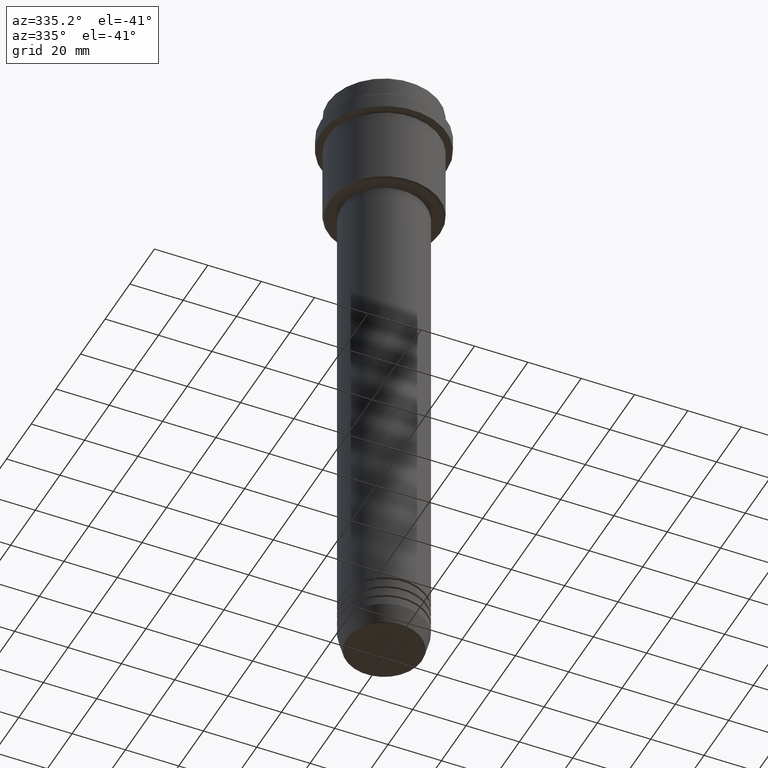
[diagram: clean part render]
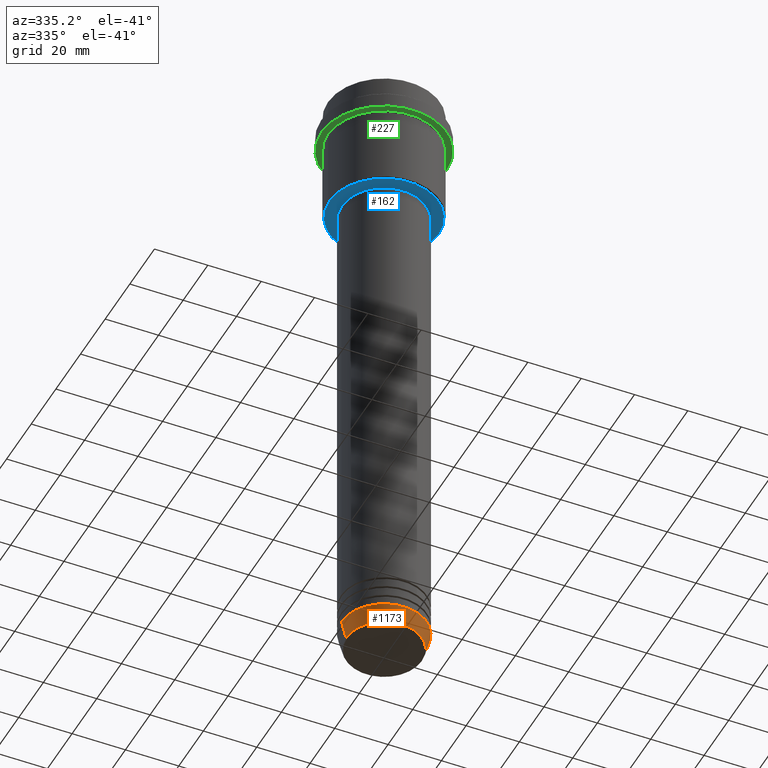
[diagram: same view with three faces highlighted in distinct colors, each labeled with its STEP entity id]
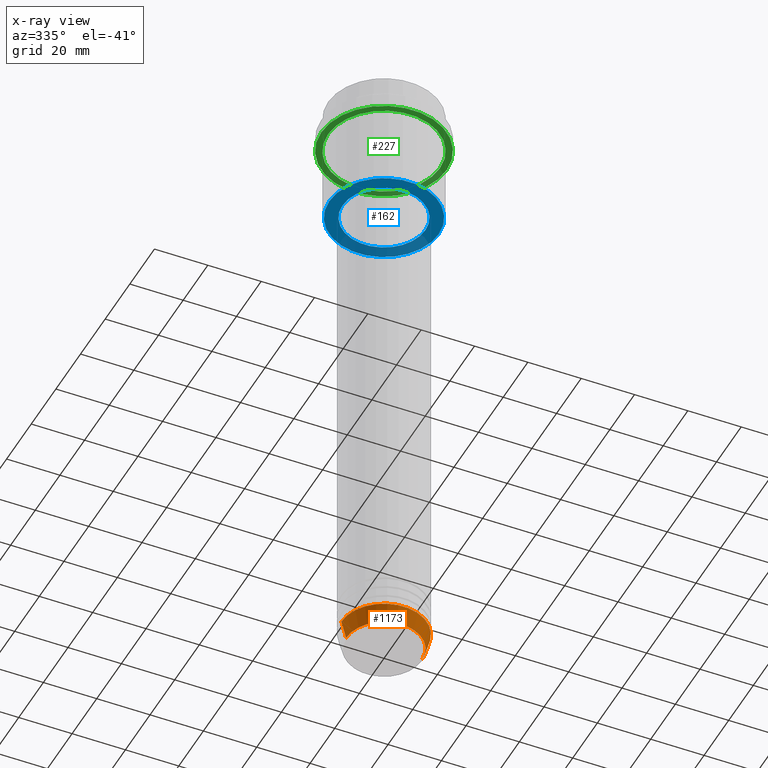
[diagram: x-ray of the same camera — body ghosted, the three highlighted faces saturated]
A machine part, auxiliary view with three faces highlighted in distinct colors.
The next image is the same camera in x-ray (body ghosted, the three faces saturated) — at least one of them is partly hidden behind the body in this view.
Their STEP definitions:

[orange] entity #1173 — the highlighted conical surface has half-angle 15 deg.
#13 = EDGE_CURVE ( 'NONE', #1147, #641, #209, .T. ) ;
#28 = CARTESIAN_POINT ( 'NONE',  ( -16.00000000000000000, 1.959434878635765131E-15, -233.0000000000000284 ) ) ;
#184 = EDGE_CURVE ( 'NONE', #1180, #1115, #526, .T. ) ;
#209 = CIRCLE ( 'NONE', #765, 14.22365507213720548 ) ;
#218 = CARTESIAN_POINT ( 'NONE',  ( 0.000000000000000000, 0.000000000000000000, -233.0000000000000284 ) ) ;
#239 = DIRECTION ( 'NONE',  ( 0.2588190451025205174, 0.000000000000000000, 0.9659258262890684232 ) ) ;
#278 = CONICAL_SURFACE ( 'NONE', #1350, 16.00000000000000000, 0.2617993877991491303 ) ;
#373 = CARTESIAN_POINT ( 'NONE',  ( 0.000000000000000000, 0.000000000000000000, -239.6294095225512990 ) ) ;
#378 = EDGE_CURVE ( 'NONE', #641, #1115, #675, .T. ) ;
#413 = VECTOR ( 'NONE', #1103, 1000.000000000000114 ) ;
#421 = DIRECTION ( 'NONE',  ( -0.000000000000000000, -0.000000000000000000, 1.000000000000000000 ) ) ;
#475 = AXIS2_PLACEMENT_3D ( 'NONE', #897, #1331, #803 ) ;
#494 = CARTESIAN_POINT ( 'NONE',  ( 14.22365507213720548, 0.000000000000000000, -239.6294095225512990 ) ) ;
#526 = CIRCLE ( 'NONE', #475, 16.00000000000000000 ) ;
#641 = VERTEX_POINT ( 'NONE', #494 ) ;
#675 = LINE ( 'NONE', #1192, #1299 ) ;
#765 = AXIS2_PLACEMENT_3D ( 'NONE', #373, #421, #1042 ) ;
#797 = LINE ( 'NONE', #1129, #413 ) ;
#803 = DIRECTION ( 'NONE',  ( 1.000000000000000000, 0.000000000000000000, 0.000000000000000000 ) ) ;
#838 = ORIENTED_EDGE ( 'NONE', *, *, #13, .T. ) ;
#868 = EDGE_CURVE ( 'NONE', #1147, #1180, #797, .T. ) ;
#897 = CARTESIAN_POINT ( 'NONE',  ( 0.000000000000000000, 0.000000000000000000, -233.0000000000000284 ) ) ;
#956 = CARTESIAN_POINT ( 'NONE',  ( 16.00000000000000000, 0.000000000000000000, -233.0000000000000284 ) ) ;
#975 = FACE_OUTER_BOUND ( 'NONE', #1127, .T. ) ;
#1042 = DIRECTION ( 'NONE',  ( 1.000000000000000000, 0.000000000000000000, 0.000000000000000000 ) ) ;
#1048 = ORIENTED_EDGE ( 'NONE', *, *, #868, .F. ) ;
#1061 = CARTESIAN_POINT ( 'NONE',  ( -14.22365507213720548, 1.850665122131324520E-15, -239.6294095225512990 ) ) ;
#1077 = DIRECTION ( 'NONE',  ( -0.000000000000000000, -0.000000000000000000, 1.000000000000000000 ) ) ;
#1103 = DIRECTION ( 'NONE',  ( -0.2588190451025205174, 3.169619151431761243E-17, 0.9659258262890684232 ) ) ;
#1109 = ORIENTED_EDGE ( 'NONE', *, *, #378, .T. ) ;
#1115 = VERTEX_POINT ( 'NONE', #956 ) ;
#1127 = EDGE_LOOP ( 'NONE', ( #1048, #838, #1109, #1183 ) ) ;
#1129 = CARTESIAN_POINT ( 'NONE',  ( -16.00000000000000000, 1.959434878635765131E-15, -233.0000000000000284 ) ) ;
#1147 = VERTEX_POINT ( 'NONE', #1061 ) ;
#1173 = ADVANCED_FACE ( 'NONE', ( #975 ), #278, .T. ) ;
#1180 = VERTEX_POINT ( 'NONE', #28 ) ;
#1183 = ORIENTED_EDGE ( 'NONE', *, *, #184, .F. ) ;
#1192 = CARTESIAN_POINT ( 'NONE',  ( 16.00000000000000000, 0.000000000000000000, -233.0000000000000284 ) ) ;
#1194 = DIRECTION ( 'NONE',  ( 1.000000000000000000, 0.000000000000000000, 0.000000000000000000 ) ) ;
#1299 = VECTOR ( 'NONE', #239, 1000.000000000000114 ) ;
#1331 = DIRECTION ( 'NONE',  ( -0.000000000000000000, -0.000000000000000000, 1.000000000000000000 ) ) ;
#1350 = AXIS2_PLACEMENT_3D ( 'NONE', #218, #1077, #1194 ) ;

[blue] entity #162 — the highlighted planar face has unit normal (0, 0, -1).
#3 = EDGE_CURVE ( 'NONE', #1347, #506, #452, .T. ) ;
#31 = EDGE_CURVE ( 'NONE', #874, #1139, #988, .T. ) ;
#32 = DIRECTION ( 'NONE',  ( 0.000000000000000000, 0.000000000000000000, -1.000000000000000000 ) ) ;
#52 = EDGE_CURVE ( 'NONE', #506, #1347, #391, .T. ) ;
#65 = FACE_BOUND ( 'NONE', #622, .T. ) ;
#83 = CARTESIAN_POINT ( 'NONE',  ( 0.000000000000000000, 21.00000000000000000, -45.00000000000002132 ) ) ;
#128 = PLANE ( 'NONE',  #787 ) ;
#162 = ADVANCED_FACE ( 'NONE', ( #938, #65 ), #128, .T. ) ;
#242 = DIRECTION ( 'NONE',  ( 0.000000000000000000, 0.000000000000000000, -1.000000000000000000 ) ) ;
#274 = AXIS2_PLACEMENT_3D ( 'NONE', #1279, #729, #425 ) ;
#301 = CIRCLE ( 'NONE', #637, 15.50000000000000000 ) ;
#304 = ORIENTED_EDGE ( 'NONE', *, *, #31, .T. ) ;
#310 = CARTESIAN_POINT ( 'NONE',  ( 15.50000000000000000, 0.000000000000000000, -45.00000000000002132 ) ) ;
#391 = CIRCLE ( 'NONE', #1220, 20.50000000000004619 ) ;
#425 = DIRECTION ( 'NONE',  ( 1.000000000000000000, 0.000000000000000000, 0.000000000000000000 ) ) ;
#452 = CIRCLE ( 'NONE', #548, 20.50000000000004619 ) ;
#463 = DIRECTION ( 'NONE',  ( -1.000000000000000000, 0.000000000000000000, -0.000000000000000000 ) ) ;
#479 = CARTESIAN_POINT ( 'NONE',  ( 20.50000000000004619, 0.000000000000000000, -45.00000000000002132 ) ) ;
#498 = DIRECTION ( 'NONE',  ( -0.000000000000000000, -0.000000000000000000, 1.000000000000000000 ) ) ;
#506 = VERTEX_POINT ( 'NONE', #479 ) ;
#514 = CARTESIAN_POINT ( 'NONE',  ( -20.50000000000004619, 2.541142108230760635E-15, -45.00000000000002132 ) ) ;
#548 = AXIS2_PLACEMENT_3D ( 'NONE', #906, #918, #1364 ) ;
#591 = ORIENTED_EDGE ( 'NONE', *, *, #3, .T. ) ;
#622 = EDGE_LOOP ( 'NONE', ( #1104, #304 ) ) ;
#637 = AXIS2_PLACEMENT_3D ( 'NONE', #1265, #498, #1250 ) ;
#670 = CARTESIAN_POINT ( 'NONE',  ( -15.50000000000000000, 1.898202538678397557E-15, -45.00000000000002132 ) ) ;
#729 = DIRECTION ( 'NONE',  ( -0.000000000000000000, -0.000000000000000000, 1.000000000000000000 ) ) ;
#787 = AXIS2_PLACEMENT_3D ( 'NONE', #83, #32, #463 ) ;
#874 = VERTEX_POINT ( 'NONE', #670 ) ;
#906 = CARTESIAN_POINT ( 'NONE',  ( 0.000000000000000000, 0.000000000000000000, -45.00000000000002132 ) ) ;
#918 = DIRECTION ( 'NONE',  ( 0.000000000000000000, 0.000000000000000000, -1.000000000000000000 ) ) ;
#938 = FACE_OUTER_BOUND ( 'NONE', #1154, .T. ) ;
#961 = ORIENTED_EDGE ( 'NONE', *, *, #52, .T. ) ;
#966 = DIRECTION ( 'NONE',  ( -1.000000000000000000, 0.000000000000000000, 0.000000000000000000 ) ) ;
#984 = EDGE_CURVE ( 'NONE', #1139, #874, #301, .T. ) ;
#988 = CIRCLE ( 'NONE', #274, 15.50000000000000000 ) ;
#1104 = ORIENTED_EDGE ( 'NONE', *, *, #984, .T. ) ;
#1139 = VERTEX_POINT ( 'NONE', #310 ) ;
#1154 = EDGE_LOOP ( 'NONE', ( #961, #591 ) ) ;
#1220 = AXIS2_PLACEMENT_3D ( 'NONE', #1291, #242, #966 ) ;
#1250 = DIRECTION ( 'NONE',  ( 1.000000000000000000, 0.000000000000000000, 0.000000000000000000 ) ) ;
#1265 = CARTESIAN_POINT ( 'NONE',  ( 0.000000000000000000, 0.000000000000000000, -45.00000000000002132 ) ) ;
#1279 = CARTESIAN_POINT ( 'NONE',  ( 0.000000000000000000, 0.000000000000000000, -45.00000000000002132 ) ) ;
#1291 = CARTESIAN_POINT ( 'NONE',  ( 0.000000000000000000, 0.000000000000000000, -45.00000000000002132 ) ) ;
#1347 = VERTEX_POINT ( 'NONE', #514 ) ;
#1364 = DIRECTION ( 'NONE',  ( -1.000000000000000000, 0.000000000000000000, 0.000000000000000000 ) ) ;

[green] entity #227 — the highlighted planar face has unit normal (0, 0, -1).
#95 = VERTEX_POINT ( 'NONE', #691 ) ;
#148 = CARTESIAN_POINT ( 'NONE',  ( -20.99999999999999289, 0.000000000000000000, -15.00000000000000178 ) ) ;
#167 = DIRECTION ( 'NONE',  ( -1.000000000000000000, 0.000000000000000000, 0.000000000000000000 ) ) ;
#197 = FACE_BOUND ( 'NONE', #994, .T. ) ;
#208 = EDGE_CURVE ( 'NONE', #95, #1377, #1321, .T. ) ;
#216 = CIRCLE ( 'NONE', #255, 20.99999999999999289 ) ;
#227 = ADVANCED_FACE ( 'NONE', ( #197, #1285 ), #736, .T. ) ;
#230 = VERTEX_POINT ( 'NONE', #148 ) ;
#255 = AXIS2_PLACEMENT_3D ( 'NONE', #627, #1029, #167 ) ;
#282 = VERTEX_POINT ( 'NONE', #1268 ) ;
#330 = CARTESIAN_POINT ( 'NONE',  ( 0.000000000000000000, 0.000000000000000000, -15.00000000000000178 ) ) ;
#390 = ORIENTED_EDGE ( 'NONE', *, *, #937, .F. ) ;
#440 = DIRECTION ( 'NONE',  ( -0.000000000000000000, -0.000000000000000000, 1.000000000000000000 ) ) ;
#469 = ORIENTED_EDGE ( 'NONE', *, *, #735, .T. ) ;
#567 = ORIENTED_EDGE ( 'NONE', *, *, #986, .T. ) ;
#572 = CIRCLE ( 'NONE', #1372, 23.50000000000000355 ) ;
#584 = CARTESIAN_POINT ( 'NONE',  ( 0.000000000000000000, 0.000000000000000000, -15.00000000000000178 ) ) ;
#627 = CARTESIAN_POINT ( 'NONE',  ( 0.000000000000000000, 0.000000000000000000, -15.00000000000000178 ) ) ;
#665 = CARTESIAN_POINT ( 'NONE',  ( 0.000000000000000000, 23.50000000000000355, -15.00000000000000178 ) ) ;
#691 = CARTESIAN_POINT ( 'NONE',  ( -23.50000000000000711, 2.877919977996281109E-15, -15.00000000000000178 ) ) ;
#701 = CARTESIAN_POINT ( 'NONE',  ( 23.50000000000000355, 0.000000000000000000, -15.00000000000000178 ) ) ;
#735 = EDGE_CURVE ( 'NONE', #282, #230, #746, .T. ) ;
#736 = PLANE ( 'NONE',  #742 ) ;
#742 = AXIS2_PLACEMENT_3D ( 'NONE', #665, #999, #1119 ) ;
#746 = CIRCLE ( 'NONE', #993, 20.99999999999999289 ) ;
#755 = DIRECTION ( 'NONE',  ( 1.000000000000000000, 0.000000000000000000, 0.000000000000000000 ) ) ;
#801 = EDGE_LOOP ( 'NONE', ( #390, #1025 ) ) ;
#834 = DIRECTION ( 'NONE',  ( -0.000000000000000000, -0.000000000000000000, 1.000000000000000000 ) ) ;
#882 = DIRECTION ( 'NONE',  ( -0.000000000000000000, -0.000000000000000000, 1.000000000000000000 ) ) ;
#937 = EDGE_CURVE ( 'NONE', #1377, #95, #572, .T. ) ;
#986 = EDGE_CURVE ( 'NONE', #230, #282, #216, .T. ) ;
#993 = AXIS2_PLACEMENT_3D ( 'NONE', #330, #834, #1172 ) ;
#994 = EDGE_LOOP ( 'NONE', ( #567, #469 ) ) ;
#999 = DIRECTION ( 'NONE',  ( 0.000000000000000000, 0.000000000000000000, -1.000000000000000000 ) ) ;
#1025 = ORIENTED_EDGE ( 'NONE', *, *, #208, .F. ) ;
#1029 = DIRECTION ( 'NONE',  ( -0.000000000000000000, -0.000000000000000000, 1.000000000000000000 ) ) ;
#1065 = AXIS2_PLACEMENT_3D ( 'NONE', #1091, #440, #755 ) ;
#1091 = CARTESIAN_POINT ( 'NONE',  ( 0.000000000000000000, 0.000000000000000000, -15.00000000000000178 ) ) ;
#1119 = DIRECTION ( 'NONE',  ( -1.000000000000000000, 0.000000000000000000, -0.000000000000000000 ) ) ;
#1172 = DIRECTION ( 'NONE',  ( -1.000000000000000000, 0.000000000000000000, 0.000000000000000000 ) ) ;
#1268 = CARTESIAN_POINT ( 'NONE',  ( 20.99999999999999289, 2.571758278209440872E-15, -15.00000000000000178 ) ) ;
#1285 = FACE_OUTER_BOUND ( 'NONE', #801, .T. ) ;
#1321 = CIRCLE ( 'NONE', #1065, 23.50000000000000355 ) ;
#1330 = DIRECTION ( 'NONE',  ( 1.000000000000000000, 0.000000000000000000, 0.000000000000000000 ) ) ;
#1372 = AXIS2_PLACEMENT_3D ( 'NONE', #584, #882, #1330 ) ;
#1377 = VERTEX_POINT ( 'NONE', #701 ) ;